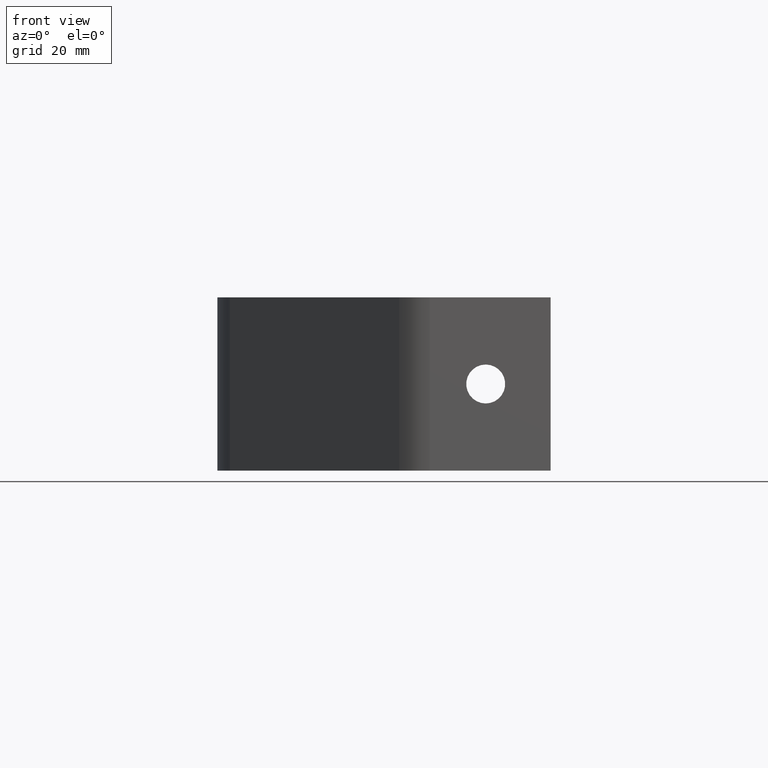
[diagram: clean part render]
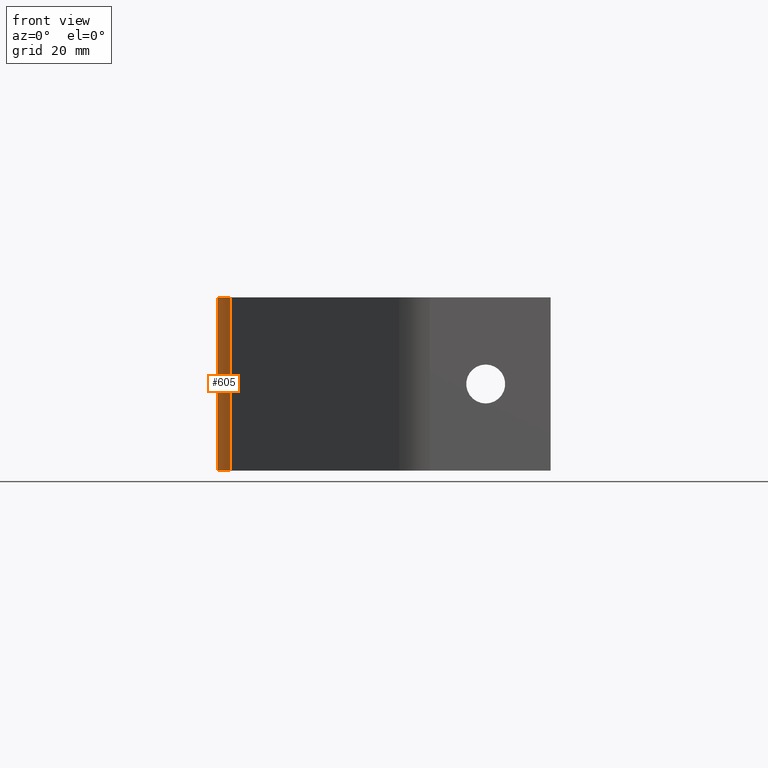
[diagram: same view with one face highlighted and labeled with its STEP entity id]
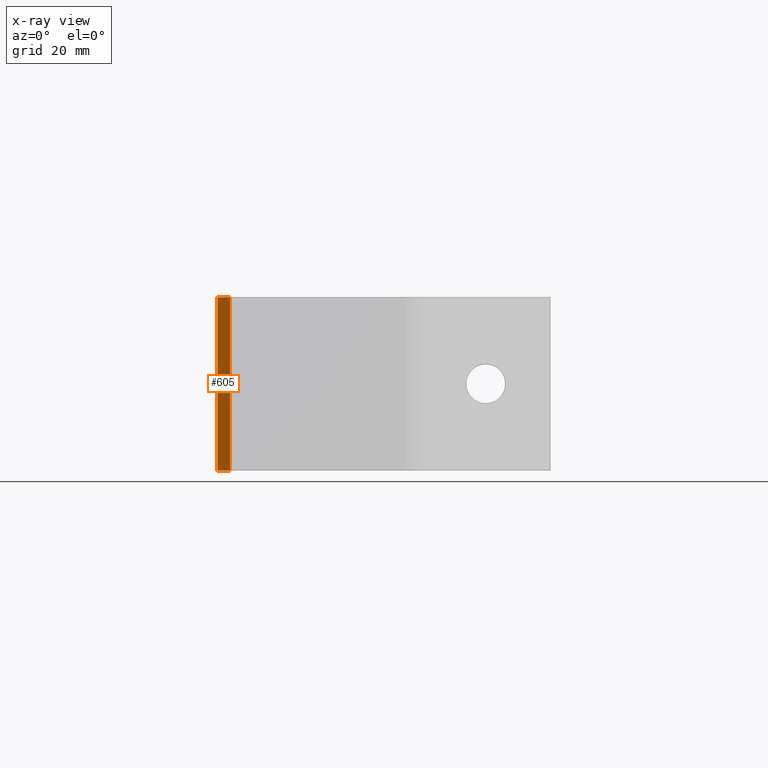
[diagram: x-ray of the same camera — body ghosted, the highlighted face saturated]
A machine part, front view. The second image highlights one B-rep face of the part: STEP entity #605.
The next image is the same camera in x-ray: the body ghosted, the highlighted face saturated — about 0% of this face is hidden behind the body in this view.
In plain terms, the highlighted cylindrical surface (partial cylindrical patch) has radius 10 mm, axis along (0, -0, -1).
Its self-contained STEP definition (entity closure, byte-faithful):
#14 = VERTEX_POINT ( 'NONE', #552 ) ;
#72 = EDGE_CURVE ( 'NONE', #541, #534, #405, .T. ) ;
#96 = AXIS2_PLACEMENT_3D ( 'NONE', #624, #625, #626 ) ;
#113 = AXIS2_PLACEMENT_3D ( 'NONE', #731, #162, #163 ) ;
#114 = AXIS2_PLACEMENT_3D ( 'NONE', #728, #729, #730 ) ;
#152 = EDGE_CURVE ( 'NONE', #534, #14, #333, .T. ) ;
#153 = EDGE_CURVE ( 'NONE', #541, #540, #331, .T. ) ;
#154 = EDGE_CURVE ( 'NONE', #540, #14, #332, .T. ) ;
#162 = DIRECTION ( 'NONE',  ( 0.0000000000000000000, -3.469446951953617100E-016, -1.000000000000000000 ) ) ;
#163 = DIRECTION ( 'NONE',  ( 0.0000000000000000000, 1.000000000000000000, -6.938893903907232300E-016 ) ) ;
#164 = CARTESIAN_POINT ( 'NONE',  ( -77.00000000000000000, 49.07106781199999500, 20.00000000000000000 ) ) ;
#165 = DIRECTION ( 'NONE',  ( 0.0000000000000000000, 0.0000000000000000000, -1.000000000000000000 ) ) ;
#187 = CARTESIAN_POINT ( 'NONE',  ( -74.07106783447677900, 41.99999997861128500, 2.961358217058114000E-015 ) ) ;
#193 = CARTESIAN_POINT ( 'NONE',  ( -77.00000000000000000, 49.07106781199999500, 40.00000000000000000 ) ) ;
#194 = CARTESIAN_POINT ( 'NONE',  ( -74.07106781270299200, 42.00000000083753100, 40.00000000000000700 ) ) ;
#266 = CYLINDRICAL_SURFACE ( 'NONE', #96, 9.999999999999994700 ) ;
#267 = FACE_OUTER_BOUND ( 'NONE', #522, .T. ) ;
#329 = VECTOR ( 'NONE', #165, 1000.000000000000000 ) ;
#331 = CIRCLE ( 'NONE', #113, 9.999999999999994700 ) ;
#332 = LINE ( 'NONE', #164, #329 ) ;
#333 = CIRCLE ( 'NONE', #114, 9.999999999999994700 ) ;
#403 = VECTOR ( 'NONE', #589, 1000.000000000000000 ) ;
#405 = LINE ( 'NONE', #588, #403 ) ;
#451 = ORIENTED_EDGE ( 'NONE', *, *, #72, .F. ) ;
#454 = ORIENTED_EDGE ( 'NONE', *, *, #153, .T. ) ;
#457 = ORIENTED_EDGE ( 'NONE', *, *, #152, .F. ) ;
#458 = ORIENTED_EDGE ( 'NONE', *, *, #154, .T. ) ;
#522 = EDGE_LOOP ( 'NONE', ( #458, #457, #451, #454 ) ) ;
#534 = VERTEX_POINT ( 'NONE', #187 ) ;
#540 = VERTEX_POINT ( 'NONE', #193 ) ;
#541 = VERTEX_POINT ( 'NONE', #194 ) ;
#552 = CARTESIAN_POINT ( 'NONE',  ( -77.00000000000000000, 49.07106781199998800, 0.0000000000000000000 ) ) ;
#588 = CARTESIAN_POINT ( 'NONE',  ( -74.07106781340600300, 42.00000000167504800, 20.00000000000000000 ) ) ;
#589 = DIRECTION ( 'NONE',  ( 0.0000000000000000000, 0.0000000000000000000, -1.000000000000000000 ) ) ;
#605 = ADVANCED_FACE ( 'NONE', ( #267 ), #266, .T. ) ;
#624 = CARTESIAN_POINT ( 'NONE',  ( -67.00000000000000000, 49.07106781199999500, 40.00000000000000000 ) ) ;
#625 = DIRECTION ( 'NONE',  ( 0.0000000000000000000, -3.469446951953617100E-016, -1.000000000000000000 ) ) ;
#626 = DIRECTION ( 'NONE',  ( 0.0000000000000000000, 1.000000000000000000, -6.938893903907232300E-016 ) ) ;
#728 = CARTESIAN_POINT ( 'NONE',  ( -67.00000000000000000, 49.07106781199998100, 0.0000000000000000000 ) ) ;
#729 = DIRECTION ( 'NONE',  ( 0.0000000000000000000, -3.469446951953617100E-016, -1.000000000000000000 ) ) ;
#730 = DIRECTION ( 'NONE',  ( 0.0000000000000000000, 1.000000000000000000, -3.469446951953617600E-016 ) ) ;
#731 = CARTESIAN_POINT ( 'NONE',  ( -67.00000000000000000, 49.07106781199999500, 40.00000000000000000 ) ) ;